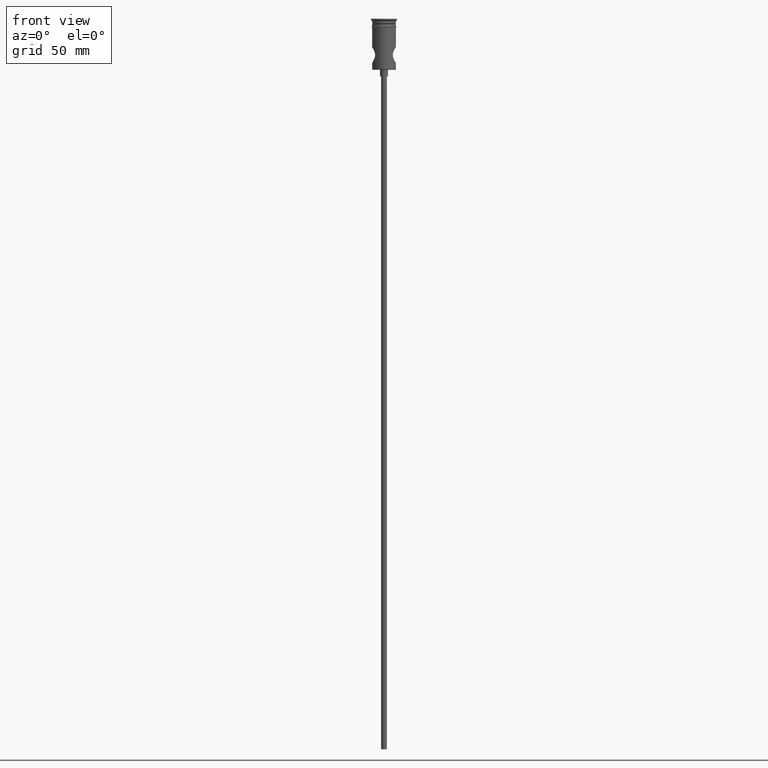
[diagram: clean part render]
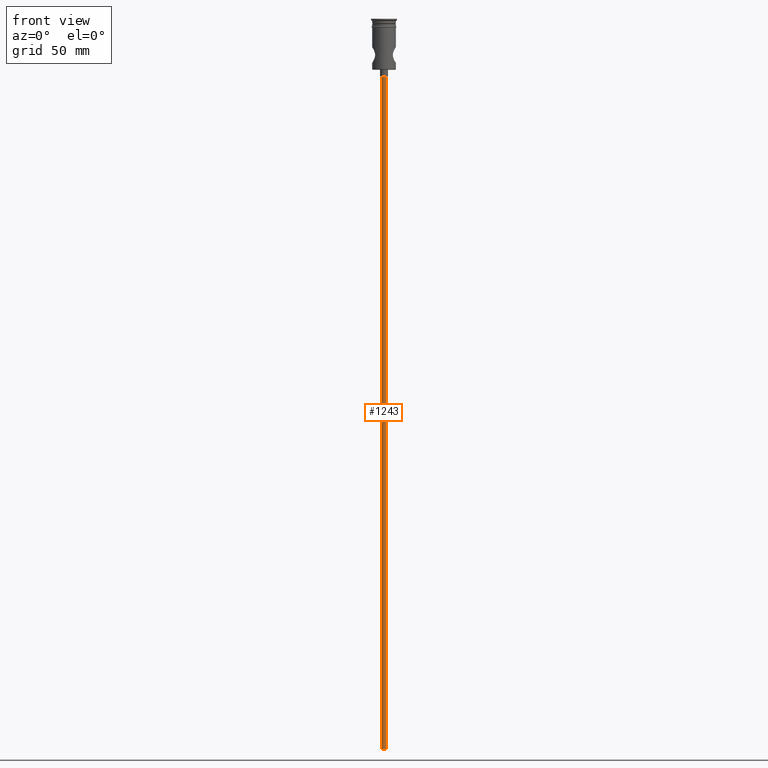
[diagram: same view with one face highlighted and labeled with its STEP entity id]
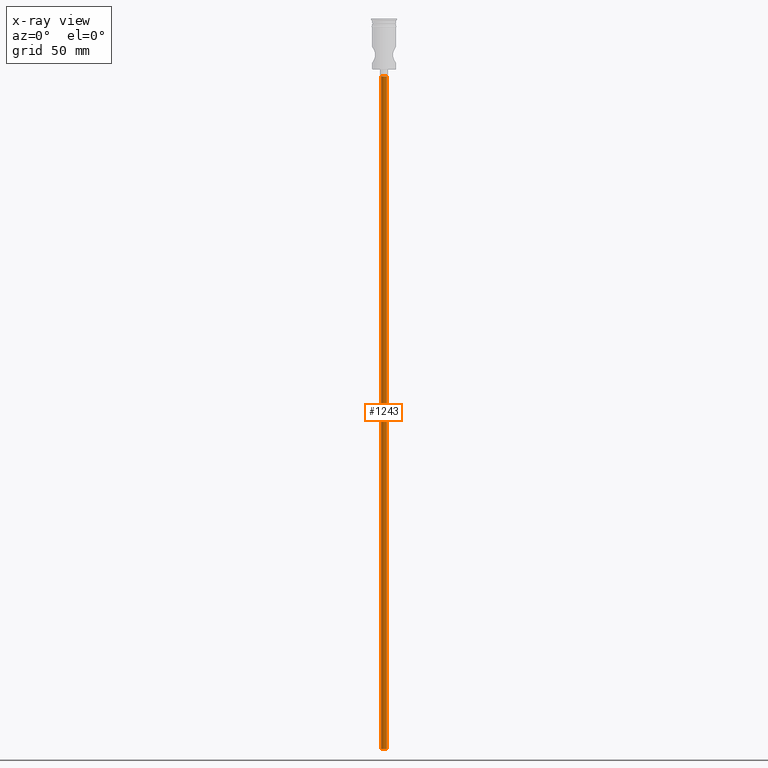
[diagram: x-ray of the same camera — body ghosted, the highlighted face saturated]
A machine part, front view. The second image highlights one B-rep face of the part: STEP entity #1243.
The next image is the same camera in x-ray: the body ghosted, the highlighted face saturated — about 0% of this face is hidden behind the body in this view.
In plain terms, the highlighted cylindrical surface (edge-blend (fillet) strip) has radius 1.25 mm, axis along (-0, -0, 1).
Its self-contained STEP definition (entity closure, byte-faithful):
#5 = ORIENTED_EDGE ( 'NONE', *, *, #1082, .T. ) ;
#125 = AXIS2_PLACEMENT_3D ( 'NONE', #642, #503, #409 ) ;
#153 = VERTEX_POINT ( 'NONE', #841 ) ;
#166 = DIRECTION ( 'NONE',  ( -0.000000000000000000, -0.000000000000000000, 1.000000000000000000 ) ) ;
#253 = ORIENTED_EDGE ( 'NONE', *, *, #610, .F. ) ;
#264 = VECTOR ( 'NONE', #1184, 1000.000000000000000 ) ;
#275 = ORIENTED_EDGE ( 'NONE', *, *, #639, .T. ) ;
#305 = EDGE_CURVE ( 'NONE', #153, #1320, #1334, .T. ) ;
#311 = ORIENTED_EDGE ( 'NONE', *, *, #305, .F. ) ;
#319 = CARTESIAN_POINT ( 'NONE',  ( 1.250000000000000000, 0.000000000000000000, -322.5000000000000000 ) ) ;
#409 = DIRECTION ( 'NONE',  ( -1.000000000000000000, 0.000000000000000000, 0.000000000000000000 ) ) ;
#482 = CARTESIAN_POINT ( 'NONE',  ( 0.000000000000000000, 0.000000000000000000, -322.5000000000000000 ) ) ;
#503 = DIRECTION ( 'NONE',  ( 0.000000000000000000, 0.000000000000000000, -1.000000000000000000 ) ) ;
#610 = EDGE_CURVE ( 'NONE', #1320, #887, #1308, .T. ) ;
#639 = EDGE_CURVE ( 'NONE', #1232, #887, #760, .T. ) ;
#642 = CARTESIAN_POINT ( 'NONE',  ( 0.000000000000000000, 0.000000000000000000, -25.50000000000000000 ) ) ;
#670 = DIRECTION ( 'NONE',  ( 0.000000000000000000, 0.000000000000000000, -1.000000000000000000 ) ) ;
#731 = CARTESIAN_POINT ( 'NONE',  ( 1.250000000000000000, 0.000000000000000000, -25.50000000000000000 ) ) ;
#734 = VECTOR ( 'NONE', #840, 1000.000000000000000 ) ;
#739 = CARTESIAN_POINT ( 'NONE',  ( -1.250000000000000000, 1.530808498934191571E-16, -322.5000000000000000 ) ) ;
#760 = CIRCLE ( 'NONE', #125, 1.250000000000000000 ) ;
#792 = CARTESIAN_POINT ( 'NONE',  ( 0.000000000000000000, 0.000000000000000000, -322.5000000000000000 ) ) ;
#840 = DIRECTION ( 'NONE',  ( -0.000000000000000000, -0.000000000000000000, 1.000000000000000000 ) ) ;
#841 = CARTESIAN_POINT ( 'NONE',  ( 1.250000000000000000, 0.000000000000000000, -322.5000000000000000 ) ) ;
#887 = VERTEX_POINT ( 'NONE', #1376 ) ;
#897 = AXIS2_PLACEMENT_3D ( 'NONE', #792, #670, #1338 ) ;
#925 = DIRECTION ( 'NONE',  ( 1.000000000000000000, 0.000000000000000000, 0.000000000000000000 ) ) ;
#946 = FACE_OUTER_BOUND ( 'NONE', #1023, .T. ) ;
#1023 = EDGE_LOOP ( 'NONE', ( #253, #311, #5, #275 ) ) ;
#1038 = CARTESIAN_POINT ( 'NONE',  ( -1.250000000000000000, 1.530808498934191571E-16, -322.5000000000000000 ) ) ;
#1082 = EDGE_CURVE ( 'NONE', #153, #1232, #1431, .T. ) ;
#1184 = DIRECTION ( 'NONE',  ( -0.000000000000000000, -0.000000000000000000, 1.000000000000000000 ) ) ;
#1222 = AXIS2_PLACEMENT_3D ( 'NONE', #482, #166, #925 ) ;
#1232 = VERTEX_POINT ( 'NONE', #731 ) ;
#1243 = ADVANCED_FACE ( 'NONE', ( #946 ), #1385, .T. ) ;
#1308 = LINE ( 'NONE', #739, #734 ) ;
#1320 = VERTEX_POINT ( 'NONE', #1038 ) ;
#1334 = CIRCLE ( 'NONE', #897, 1.250000000000000000 ) ;
#1338 = DIRECTION ( 'NONE',  ( -1.000000000000000000, 0.000000000000000000, 0.000000000000000000 ) ) ;
#1376 = CARTESIAN_POINT ( 'NONE',  ( -1.250000000000000000, 1.530808498934191571E-16, -25.50000000000000000 ) ) ;
#1385 = CYLINDRICAL_SURFACE ( 'NONE', #1222, 1.250000000000000000 ) ;
#1431 = LINE ( 'NONE', #319, #264 ) ;